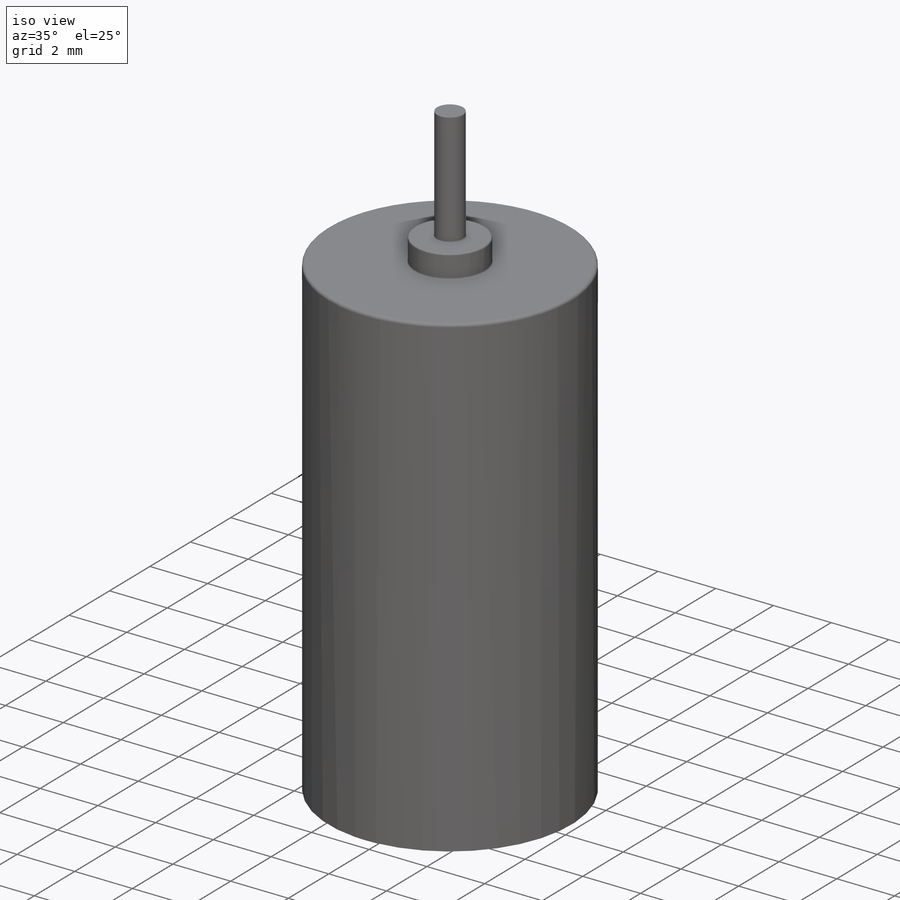
[diagram: iso view]
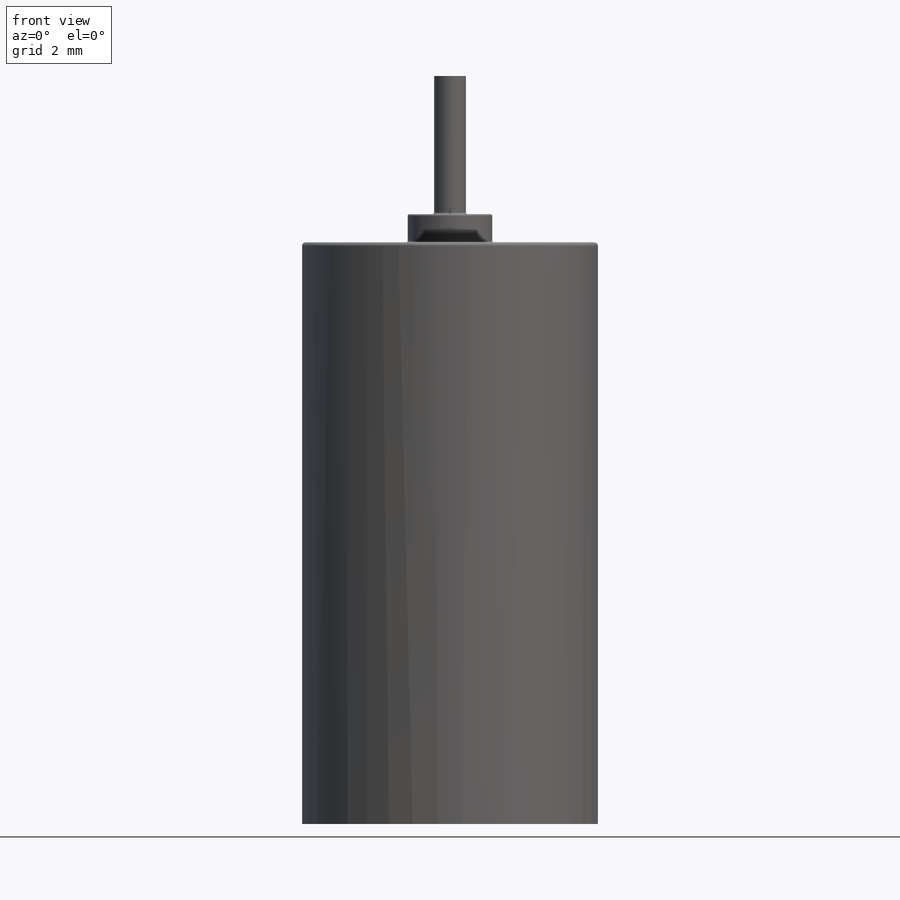
[diagram: front view]
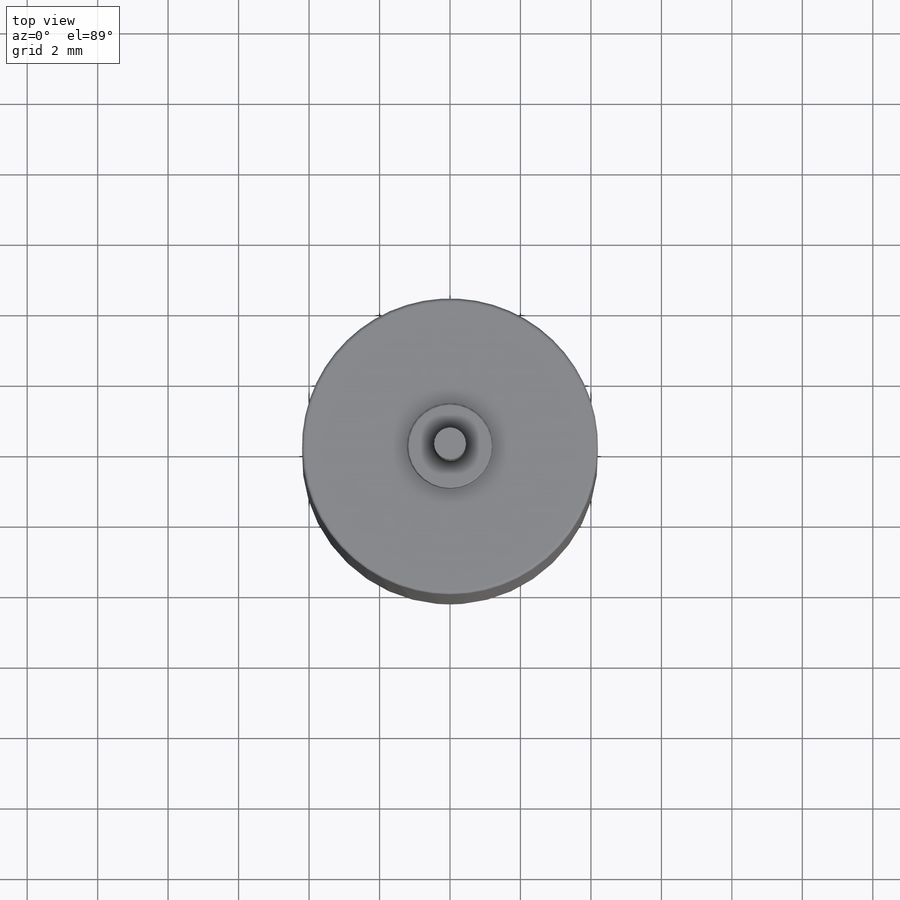
[diagram: top view]
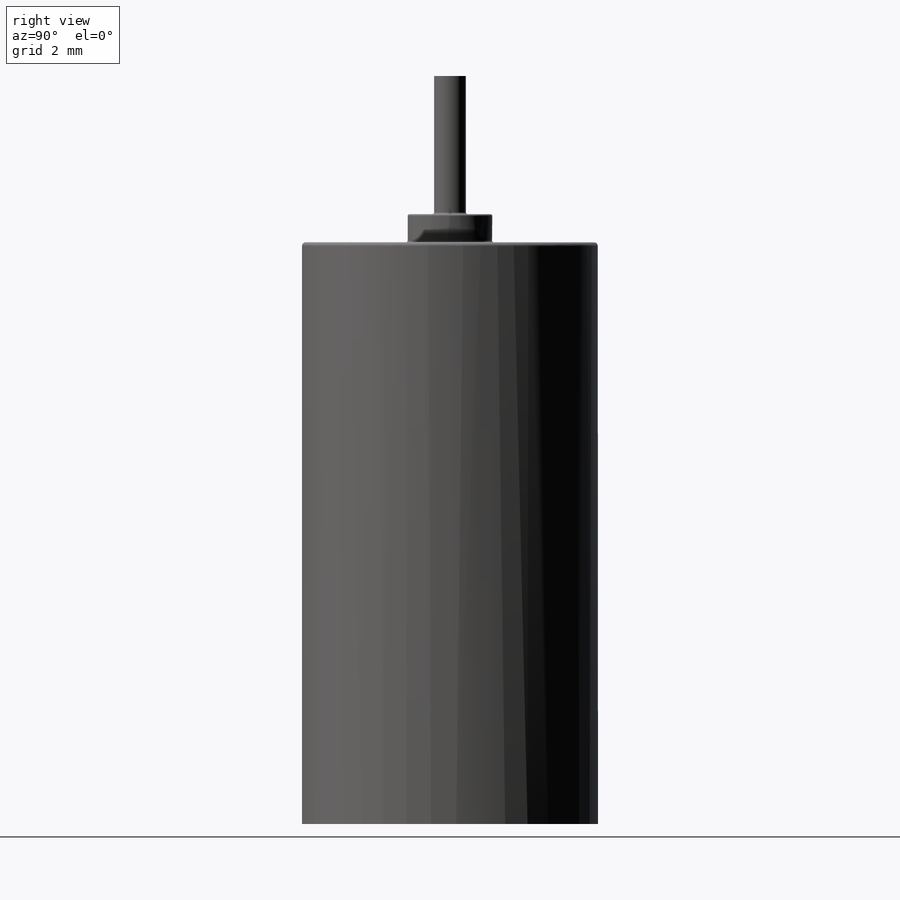
[diagram: right view]
SOLIDWORKS PART (.sldprt)
format: sldprt  version: not decoded by parser v0  size: 167,936 bytes
history: native  units: mm
features: sketch x3, extrude x3, plane x2, fillet x2, material x1 (+13 scaffold rows collapsed)
feature tree (24):
  scaffold x13  (default folders/planes/origin — collapsed)
  material  "Material <not specified>"
  sketch  "Sketch1"  dims[D1=3.52mm]
  extrude  "Boss-Extrude1"  Depth=16.51mm
  plane  "Plane1"  Offset=0mm
  sketch  "Sketch2"  dims[D1=1.015mm]
  extrude  "Boss-Extrude2"  Depth=0.8mm
  plane  "Plane2"  Offset=0mm
  sketch  "Sketch3"  dims[D1=0.4mm]
  extrude  "Boss-Extrude3"  Depth=3.92mm
  fillet  "Fillet3"  Radius=0.05mm
  fillet  "Fillet4"  Radius=0.1mm
decode coverage: 8 of 8 modeling features carry decoded parameters
note: suppression state not decoded; provenance and decode notes live in map.json
